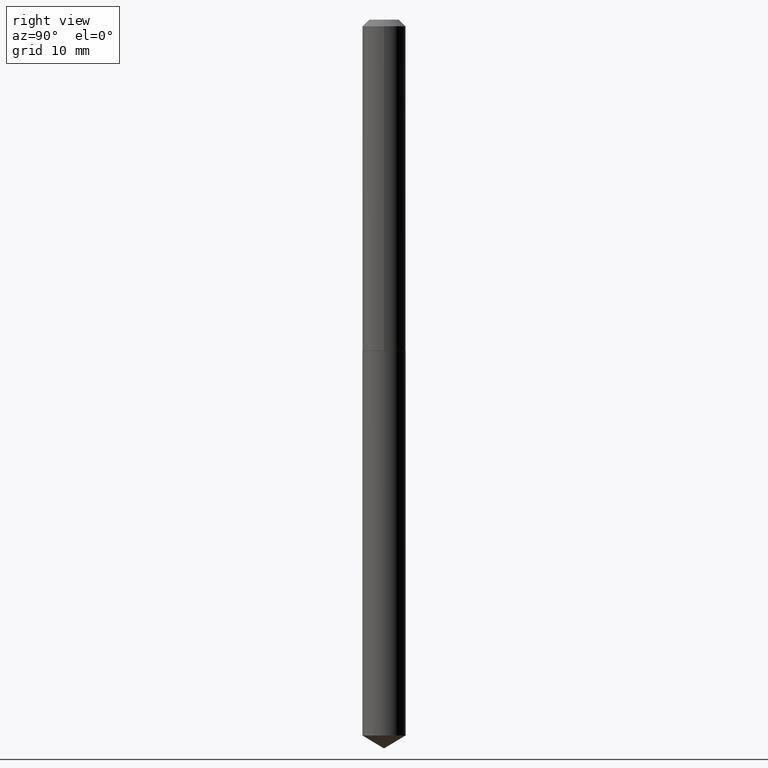
[diagram: clean part render]
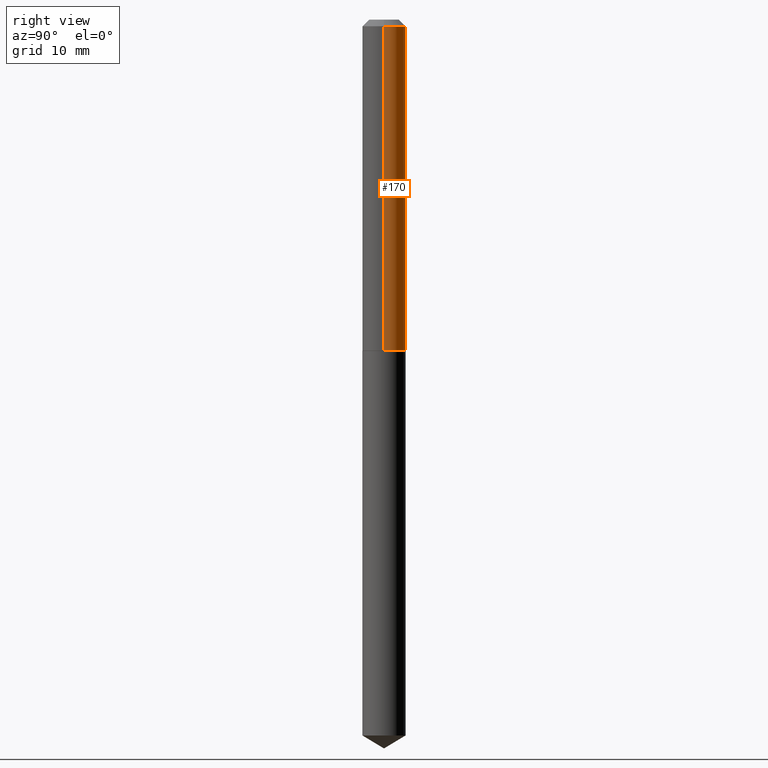
[diagram: same view with one face highlighted and labeled with its STEP entity id]
A machine part, right view. The second image highlights one B-rep face of the part: STEP entity #170.
In plain terms, the highlighted cylindrical surface (edge-blend (fillet) strip) has radius 2.5502 mm, axis along (-0, 0, 1).
Its self-contained STEP definition (entity closure, byte-faithful):
#6 = ORIENTED_EDGE ( 'NONE', *, *, #166, .F. ) ;
#10 = CIRCLE ( 'NONE', #136, 0.1004000000000000031 ) ;
#13 = ORIENTED_EDGE ( 'NONE', *, *, #176, .T. ) ;
#17 = LINE ( 'NONE', #164, #54 ) ;
#23 = AXIS2_PLACEMENT_3D ( 'NONE', #257, #101, #70 ) ;
#48 = CARTESIAN_POINT ( 'NONE',  ( -0.1004000000000000031, -2.027689805389141589E-15, -0.03125000000000020817 ) ) ;
#50 = LINE ( 'NONE', #227, #255 ) ;
#54 = VECTOR ( 'NONE', #280, 39.37007874015748143 ) ;
#55 = CARTESIAN_POINT ( 'NONE',  ( 0.1004000000000000031, -8.101982446785502760E-16, -0.03125000000000020817 ) ) ;
#70 = DIRECTION ( 'NONE',  ( 1.000000000000000000, -6.982962677686269866E-15, 0.000000000000000000 ) ) ;
#74 = CYLINDRICAL_SURFACE ( 'NONE', #335, 0.1004000000000000864 ) ;
#75 = DIRECTION ( 'NONE',  ( 1.000000000000000000, -6.982962677686266711E-15, 0.000000000000000000 ) ) ;
#76 = DIRECTION ( 'NONE',  ( -2.445468806185136877E-29, 3.491481338843145188E-15, 1.000000000000000000 ) ) ;
#84 = EDGE_LOOP ( 'NONE', ( #91, #13, #180, #6 ) ) ;
#85 = CIRCLE ( 'NONE', #23, 0.1004000000000001835 ) ;
#91 = ORIENTED_EDGE ( 'NONE', *, *, #137, .T. ) ;
#101 = DIRECTION ( 'NONE',  ( -2.445468806185136597E-29, 3.491481338843145583E-15, 1.000000000000000000 ) ) ;
#107 = DIRECTION ( 'NONE',  ( -2.445468806185136597E-29, 3.491481338843145583E-15, 1.000000000000000000 ) ) ;
#114 = CARTESIAN_POINT ( 'NONE',  ( 0.1004000000000001835, -6.074130085185420909E-15, -1.538900000000000379 ) ) ;
#136 = AXIS2_PLACEMENT_3D ( 'NONE', #373, #107, #75 ) ;
#137 = EDGE_CURVE ( 'NONE', #270, #188, #85, .T. ) ;
#142 = EDGE_CURVE ( 'NONE', #302, #151, #10, .T. ) ;
#151 = VERTEX_POINT ( 'NONE', #48 ) ;
#164 = CARTESIAN_POINT ( 'NONE',  ( -0.1004000000000000864, 7.133849067031412005E-16, -4.938610830615929898E-30 ) ) ;
#166 = EDGE_CURVE ( 'NONE', #270, #302, #50, .T. ) ;
#170 = ADVANCED_FACE ( 'NONE', ( #312 ), #74, .T. ) ;
#176 = EDGE_CURVE ( 'NONE', #188, #151, #17, .T. ) ;
#180 = ORIENTED_EDGE ( 'NONE', *, *, #142, .F. ) ;
#188 = VERTEX_POINT ( 'NONE', #380 ) ;
#194 = CARTESIAN_POINT ( 'NONE',  ( 0.000000000000000000, 0.000000000000000000, 0.000000000000000000 ) ) ;
#227 = CARTESIAN_POINT ( 'NONE',  ( 0.1004000000000000864, -7.010894528397017670E-16, 4.895681482899124059E-30 ) ) ;
#255 = VECTOR ( 'NONE', #76, 39.37007874015748143 ) ;
#257 = CARTESIAN_POINT ( 'NONE',  ( 3.763331945838307250E-29, -5.373040632345718254E-15, -1.538900000000000379 ) ) ;
#270 = VERTEX_POINT ( 'NONE', #114 ) ;
#276 = DIRECTION ( 'NONE',  ( 1.000000000000000000, -6.982962677686266711E-15, 4.876176775795936353E-29 ) ) ;
#280 = DIRECTION ( 'NONE',  ( -2.445468806185136877E-29, 3.491481338843145188E-15, 1.000000000000000000 ) ) ;
#302 = VERTEX_POINT ( 'NONE', #55 ) ;
#312 = FACE_OUTER_BOUND ( 'NONE', #84, .T. ) ;
#316 = DIRECTION ( 'NONE',  ( -2.445468806185136597E-29, 3.491481338843145583E-15, 1.000000000000000000 ) ) ;
#335 = AXIS2_PLACEMENT_3D ( 'NONE', #194, #316, #276 ) ;
#373 = CARTESIAN_POINT ( 'NONE',  ( 7.642090019328602662E-31, -1.091087918388490267E-16, -0.03125000000000020817 ) ) ;
#380 = CARTESIAN_POINT ( 'NONE',  ( -0.1004000000000001835, -4.659655725642575772E-15, -1.538900000000000379 ) ) ;